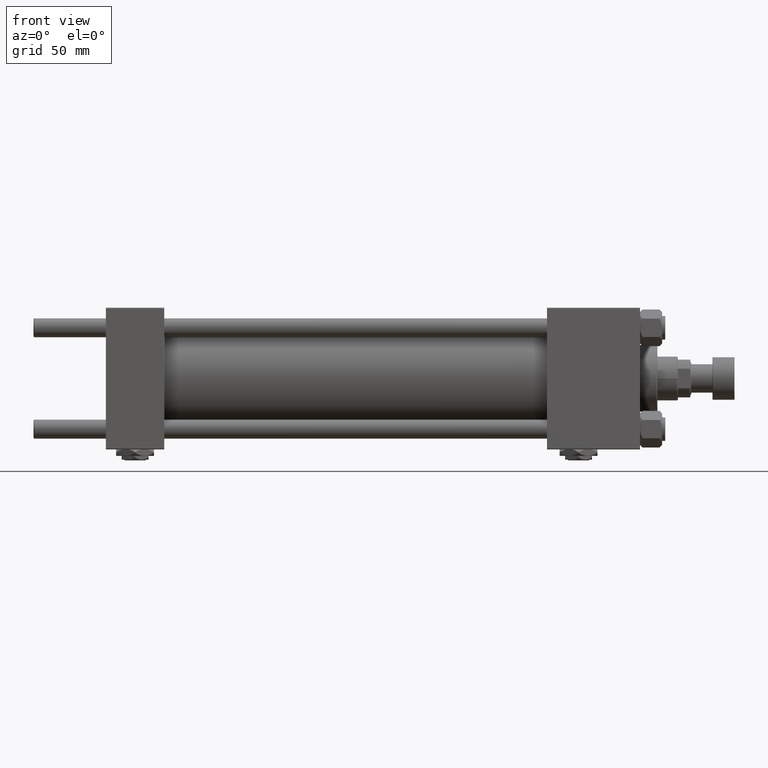
[diagram: clean part render]
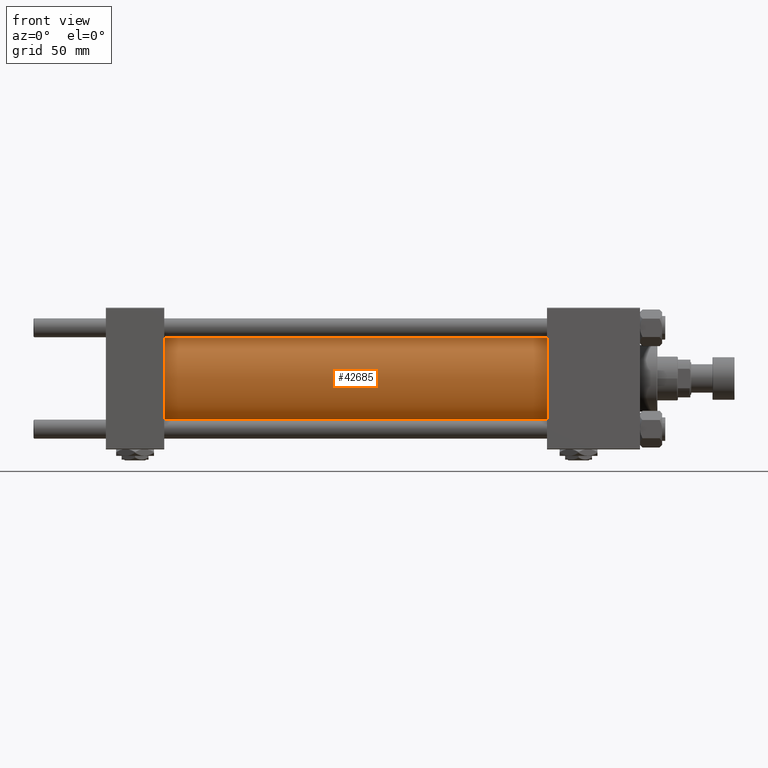
[diagram: same view with one face highlighted and labeled with its STEP entity id]
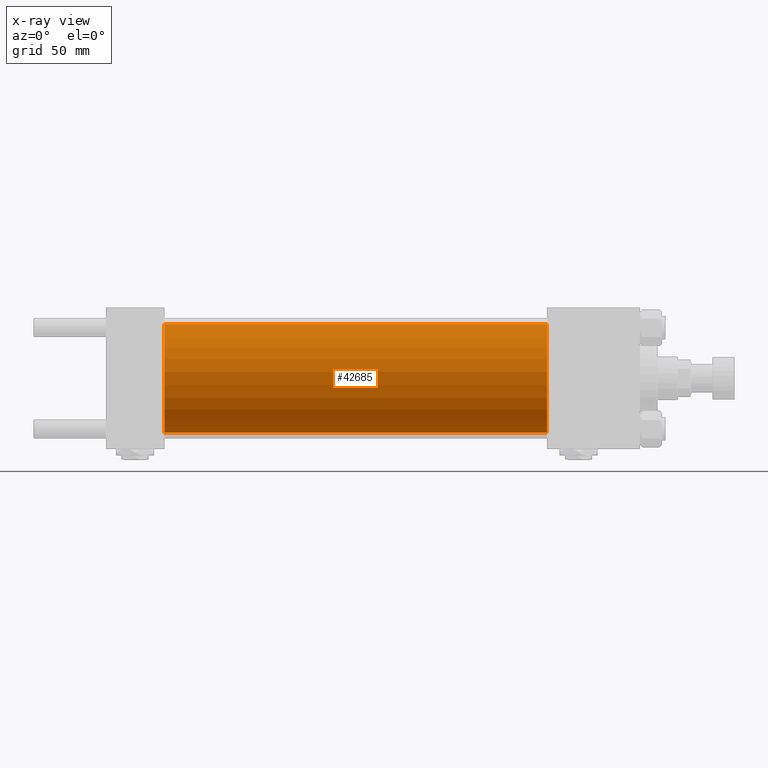
[diagram: x-ray of the same camera — body ghosted, the highlighted face saturated]
A machine part, front view. The second image highlights one B-rep face of the part: STEP entity #42685.
The next image is the same camera in x-ray: the body ghosted, the highlighted face saturated — about 0% of this face is hidden behind the body in this view.
In plain terms, the highlighted cylindrical surface (partial cylindrical patch) has radius 34.5 mm, axis along (-1, -0, -0).
Its self-contained STEP definition (entity closure, byte-faithful):
#362 = LINE ( 'NONE', #7778, #34333 ) ;
#2152 = VECTOR ( 'NONE', #25989, 1000.000000000000000 ) ;
#2796 = EDGE_CURVE ( 'NONE', #12865, #7300, #35463, .T. ) ;
#3182 = DIRECTION ( 'NONE',  ( 1.000000000000000000, 0.000000000000000000, 0.000000000000000000 ) ) ;
#3217 = DIRECTION ( 'NONE',  ( -1.000000000000000000, -0.000000000000000000, -0.000000000000000000 ) ) ;
#3996 = CARTESIAN_POINT ( 'NONE',  ( 279.9999999999999432, 4.225031457058367344E-15, -34.49999999999999289 ) ) ;
#6880 = VERTEX_POINT ( 'NONE', #13607 ) ;
#6883 = DIRECTION ( 'NONE',  ( 0.000000000000000000, 0.000000000000000000, -1.000000000000000000 ) ) ;
#7300 = VERTEX_POINT ( 'NONE', #3996 ) ;
#7778 = CARTESIAN_POINT ( 'NONE',  ( 279.9999999999999432, 4.225031457058367344E-15, -34.49999999999999289 ) ) ;
#8522 = CARTESIAN_POINT ( 'NONE',  ( 37.00000000000000711, 0.000000000000000000, 0.000000000000000000 ) ) ;
#10253 = CARTESIAN_POINT ( 'NONE',  ( 37.00000000000000711, 0.000000000000000000, 34.49999999999999289 ) ) ;
#11927 = CYLINDRICAL_SURFACE ( 'NONE', #39979, 34.49999999999999289 ) ;
#12865 = VERTEX_POINT ( 'NONE', #46762 ) ;
#13607 = CARTESIAN_POINT ( 'NONE',  ( 37.00000000000000711, 4.225031457058367344E-15, -34.49999999999999289 ) ) ;
#14320 = AXIS2_PLACEMENT_3D ( 'NONE', #8522, #45294, #16191 ) ;
#16191 = DIRECTION ( 'NONE',  ( 0.000000000000000000, 0.000000000000000000, 1.000000000000000000 ) ) ;
#16572 = ORIENTED_EDGE ( 'NONE', *, *, #26853, .F. ) ;
#16759 = LINE ( 'NONE', #37135, #2152 ) ;
#17345 = EDGE_LOOP ( 'NONE', ( #16572, #23154, #41423, #41387 ) ) ;
#23154 = ORIENTED_EDGE ( 'NONE', *, *, #2796, .F. ) ;
#25989 = DIRECTION ( 'NONE',  ( -1.000000000000000000, -0.000000000000000000, -0.000000000000000000 ) ) ;
#26853 = EDGE_CURVE ( 'NONE', #7300, #6880, #362, .T. ) ;
#31243 = DIRECTION ( 'NONE',  ( 0.000000000000000000, 0.000000000000000000, 1.000000000000000000 ) ) ;
#32026 = CIRCLE ( 'NONE', #14320, 34.49999999999999289 ) ;
#32621 = DIRECTION ( 'NONE',  ( -1.000000000000000000, -0.000000000000000000, -0.000000000000000000 ) ) ;
#34077 = EDGE_CURVE ( 'NONE', #46283, #6880, #32026, .T. ) ;
#34333 = VECTOR ( 'NONE', #32621, 1000.000000000000000 ) ;
#35463 = CIRCLE ( 'NONE', #51528, 34.49999999999999289 ) ;
#37135 = CARTESIAN_POINT ( 'NONE',  ( 279.9999999999999432, 0.000000000000000000, 34.49999999999999289 ) ) ;
#39979 = AXIS2_PLACEMENT_3D ( 'NONE', #48434, #3217, #31243 ) ;
#41387 = ORIENTED_EDGE ( 'NONE', *, *, #34077, .T. ) ;
#41423 = ORIENTED_EDGE ( 'NONE', *, *, #46945, .T. ) ;
#42598 = CARTESIAN_POINT ( 'NONE',  ( 279.9999999999999432, 0.000000000000000000, 0.000000000000000000 ) ) ;
#42685 = ADVANCED_FACE ( 'NONE', ( #43420 ), #11927, .T. ) ;
#43420 = FACE_OUTER_BOUND ( 'NONE', #17345, .T. ) ;
#45294 = DIRECTION ( 'NONE',  ( 1.000000000000000000, -0.000000000000000000, 0.000000000000000000 ) ) ;
#46283 = VERTEX_POINT ( 'NONE', #10253 ) ;
#46762 = CARTESIAN_POINT ( 'NONE',  ( 279.9999999999999432, 0.000000000000000000, 34.49999999999999289 ) ) ;
#46945 = EDGE_CURVE ( 'NONE', #12865, #46283, #16759, .T. ) ;
#48434 = CARTESIAN_POINT ( 'NONE',  ( 279.9999999999999432, 0.000000000000000000, 0.000000000000000000 ) ) ;
#51528 = AXIS2_PLACEMENT_3D ( 'NONE', #42598, #3182, #6883 ) ;